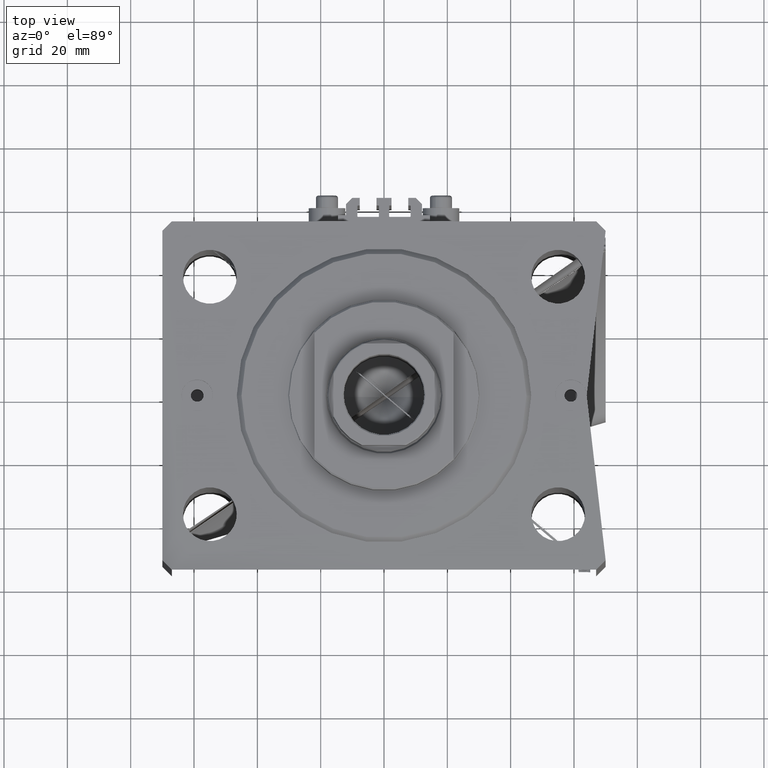
[diagram: clean part render]
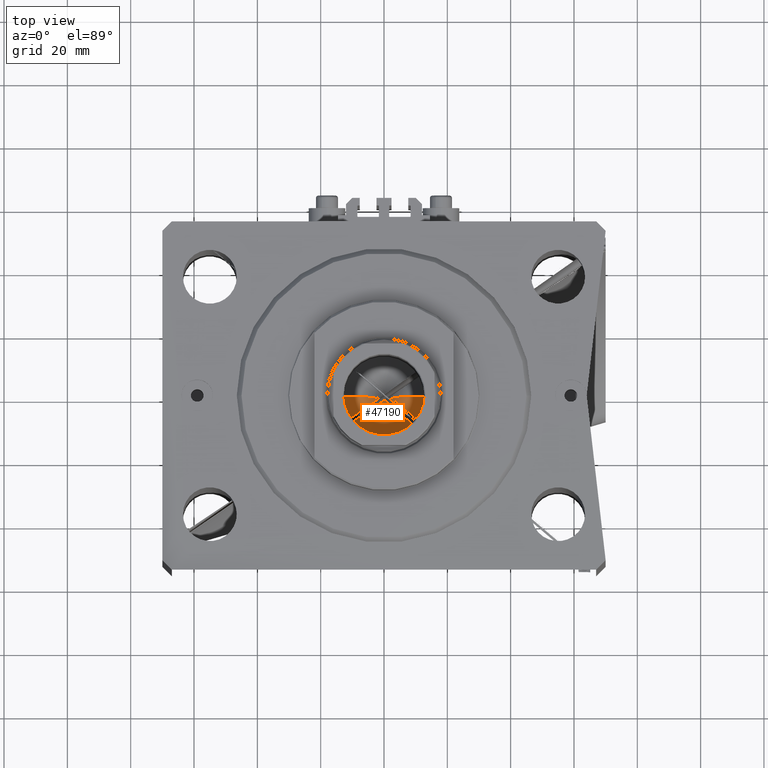
[diagram: same view with one face highlighted and labeled with its STEP entity id]
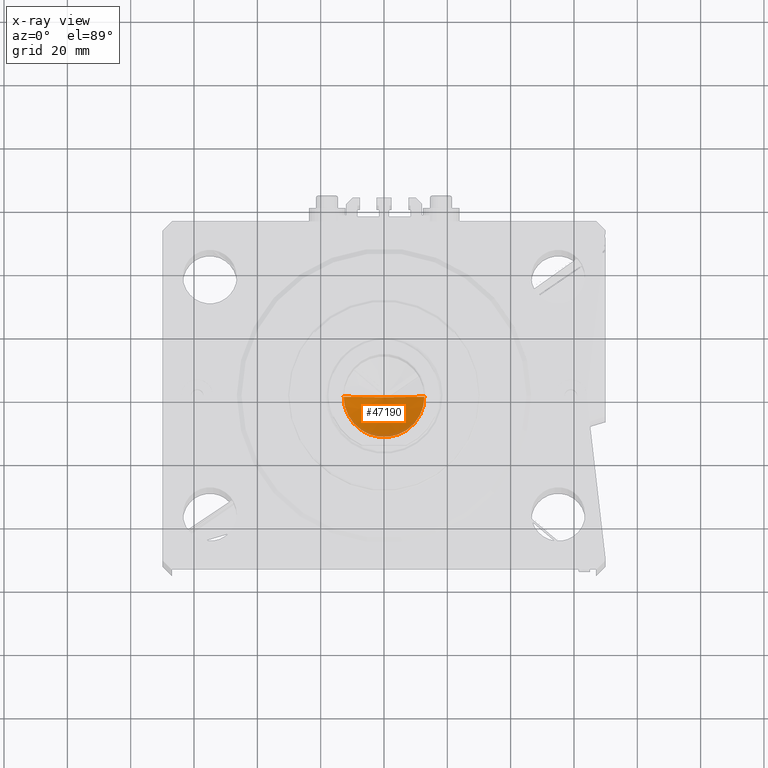
[diagram: x-ray of the same camera — body ghosted, the highlighted face saturated]
A machine part, top view. The second image highlights one B-rep face of the part: STEP entity #47190.
The next image is the same camera in x-ray: the body ghosted, the highlighted face saturated — about 8% of this face is hidden behind the body in this view.
In plain terms, the highlighted conical surface has half-angle 59 deg.
Its self-contained STEP definition (entity closure, byte-faithful):
#1420 = AXIS2_PLACEMENT_3D ( 'NONE', #45998, #41724, #24049 ) ;
#5703 = AXIS2_PLACEMENT_3D ( 'NONE', #31413, #37873, #13048 ) ;
#6385 = EDGE_LOOP ( 'NONE', ( #20418, #41290, #22280 ) ) ;
#12567 = CARTESIAN_POINT ( 'NONE',  ( -12.74999999999999112, 1.561424668912874125E-15, 70.00000000000000000 ) ) ;
#13048 = DIRECTION ( 'NONE',  ( 1.000000000000000000, 0.000000000000000000, 0.000000000000000000 ) ) ;
#14632 = DIRECTION ( 'NONE',  ( -0.8571673007021117785, 1.049727191138617956E-16, 0.5150380749100550437 ) ) ;
#15347 = CARTESIAN_POINT ( 'NONE',  ( -12.74999999999999112, 1.561424668912874125E-15, 70.00000000000000000 ) ) ;
#15561 = EDGE_CURVE ( 'NONE', #30667, #45058, #38239, .T. ) ;
#17935 = VECTOR ( 'NONE', #14632, 1000.000000000000000 ) ;
#19638 = CARTESIAN_POINT ( 'NONE',  ( 12.74999999999999112, 0.000000000000000000, 70.00000000000000000 ) ) ;
#20418 = ORIENTED_EDGE ( 'NONE', *, *, #15561, .F. ) ;
#22280 = ORIENTED_EDGE ( 'NONE', *, *, #37060, .T. ) ;
#24049 = DIRECTION ( 'NONE',  ( 1.000000000000000000, 0.000000000000000000, 0.000000000000000000 ) ) ;
#26277 = CIRCLE ( 'NONE', #5703, 12.74999999999999112 ) ;
#28599 = CARTESIAN_POINT ( 'NONE',  ( 12.74999999999999112, 0.000000000000000000, 70.00000000000000000 ) ) ;
#30667 = VERTEX_POINT ( 'NONE', #44749 ) ;
#31413 = CARTESIAN_POINT ( 'NONE',  ( 0.000000000000000000, 0.000000000000000000, 70.00000000000000000 ) ) ;
#31518 = VECTOR ( 'NONE', #41825, 1000.000000000000000 ) ;
#36356 = LINE ( 'NONE', #15347, #17935 ) ;
#37060 = EDGE_CURVE ( 'NONE', #43073, #45058, #26277, .T. ) ;
#37253 = CONICAL_SURFACE ( 'NONE', #1420, 12.74999999999999112, 1.029744258676653423 ) ;
#37873 = DIRECTION ( 'NONE',  ( -0.000000000000000000, -0.000000000000000000, 1.000000000000000000 ) ) ;
#37892 = FACE_OUTER_BOUND ( 'NONE', #6385, .T. ) ;
#37909 = EDGE_CURVE ( 'NONE', #30667, #43073, #36356, .T. ) ;
#38239 = LINE ( 'NONE', #19638, #31518 ) ;
#41290 = ORIENTED_EDGE ( 'NONE', *, *, #37909, .T. ) ;
#41724 = DIRECTION ( 'NONE',  ( -0.000000000000000000, -0.000000000000000000, 1.000000000000000000 ) ) ;
#41825 = DIRECTION ( 'NONE',  ( 0.8571673007021117785, 0.000000000000000000, 0.5150380749100550437 ) ) ;
#43073 = VERTEX_POINT ( 'NONE', #12567 ) ;
#44749 = CARTESIAN_POINT ( 'NONE',  ( -1.307202896762960287E-14, 0.000000000000000000, 62.33902710739860709 ) ) ;
#45058 = VERTEX_POINT ( 'NONE', #28599 ) ;
#45998 = CARTESIAN_POINT ( 'NONE',  ( 0.000000000000000000, 0.000000000000000000, 70.00000000000000000 ) ) ;
#47190 = ADVANCED_FACE ( 'NONE', ( #37892 ), #37253, .F. ) ;